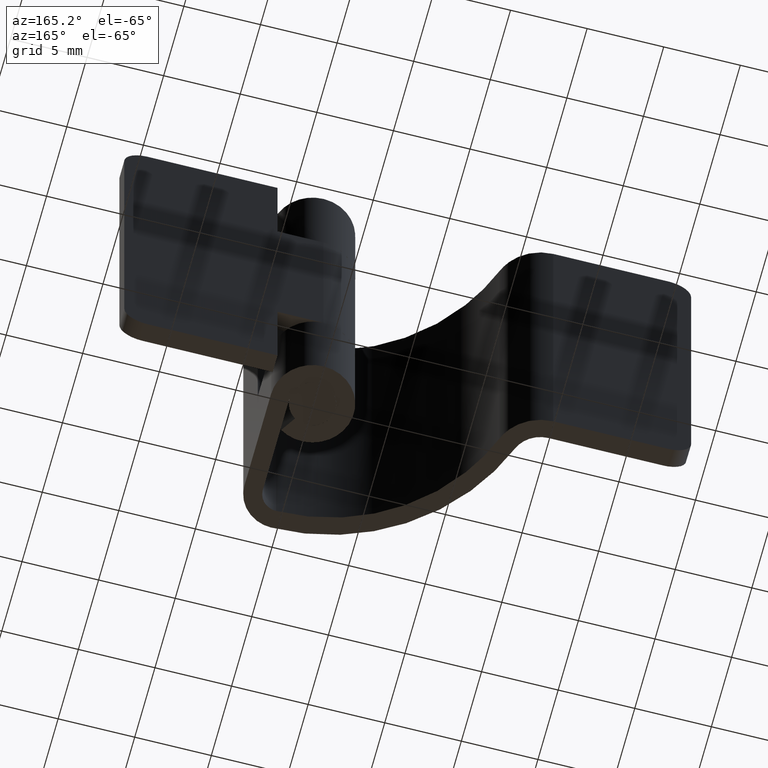
[diagram: clean part render]
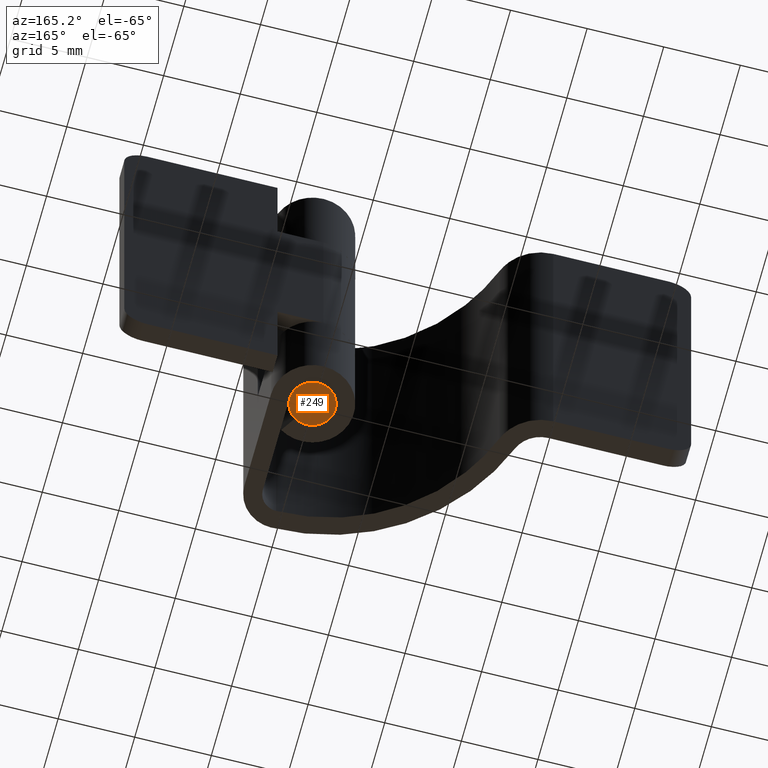
[diagram: same view with one face highlighted and labeled with its STEP entity id]
A machine part, auxiliary view. The second image highlights one B-rep face of the part: STEP entity #249.
In plain terms, the highlighted face is a freeform B-spline surface patch.
Its self-contained STEP definition (entity closure, byte-faithful):
#79=CARTESIAN_POINT('',(0.117688643674272,-1.495376000593198,-8.881784E-016));
#80=VERTEX_POINT('',#79);
#86=CARTESIAN_POINT('',(1.500000000000000,0.0,0.0));
#87=VERTEX_POINT('',#86);
#88=CARTESIAN_POINT('',(1.500000000000000,0.0,0.0));
#89=CARTESIAN_POINT('',(1.500000000000000,-1.386585737333832,0.0));
#90=CARTESIAN_POINT('',(0.117688643674272,-1.495376000593198,-8.881784E-016));
#98=(BOUNDED_CURVE()B_SPLINE_CURVE(2,(#88,#89,#90),.UNSPECIFIED.,.F.,.U.)B_SPLINE_CURVE_WITH_KNOTS((3,3),(0.0,0.236331300613851),.UNSPECIFIED.)CURVE()GEOMETRIC_REPRESENTATION_ITEM()RATIONAL_B_SPLINE_CURVE((1.0,0.723120658627358,0.969723356132339))REPRESENTATION_ITEM(''));
#99=EDGE_CURVE('',#87,#80,#98,.T.);
#101=CARTESIAN_POINT('',(-0.117688643674273,1.495376000593198,-8.881784E-016));
#102=VERTEX_POINT('',#101);
#103=CARTESIAN_POINT('',(-0.117688643674273,1.495376000593198,-8.881784E-016));
#104=CARTESIAN_POINT('',(-0.058935160594392,1.500000000000000,0.0));
#105=CARTESIAN_POINT('',(0.0,1.500000000000000,0.0));
#106=CARTESIAN_POINT('',(1.500000000000000,1.500000000000000,0.0));
#107=CARTESIAN_POINT('',(1.500000000000000,0.0,0.0));
#115=(BOUNDED_CURVE()B_SPLINE_CURVE(2,(#103,#104,#105,#106,#107),.UNSPECIFIED.,.F.,.U.)B_SPLINE_CURVE_WITH_KNOTS((3,2,3),(0.736331300613851,0.750000000000000,1.0),.UNSPECIFIED.)CURVE()GEOMETRIC_REPRESENTATION_ITEM()RATIONAL_B_SPLINE_CURVE((0.969723356132339,0.983986122559189,1.0,0.707106781186548,1.0))REPRESENTATION_ITEM(''));
#116=EDGE_CURVE('',#102,#87,#115,.T.);
#192=CARTESIAN_POINT('',(-1.500000000000000,0.0,0.0));
#193=VERTEX_POINT('',#192);
#194=CARTESIAN_POINT('',(-1.500000000000000,0.0,0.0));
#195=CARTESIAN_POINT('',(-1.500000000000000,1.386585737333828,0.0));
#196=CARTESIAN_POINT('',(-0.117688643674273,1.495376000593199,-8.881784E-016));
#204=(BOUNDED_CURVE()B_SPLINE_CURVE(2,(#194,#195,#196),.UNSPECIFIED.,.F.,.U.)B_SPLINE_CURVE_WITH_KNOTS((3,3),(0.500000000000000,0.736331300613850),.UNSPECIFIED.)CURVE()GEOMETRIC_REPRESENTATION_ITEM()RATIONAL_B_SPLINE_CURVE((1.0,0.723120658627359,0.969723356132338))REPRESENTATION_ITEM(''));
#205=EDGE_CURVE('',#193,#102,#204,.T.);
#207=CARTESIAN_POINT('',(0.117688643674272,-1.495376000593198,-8.881784E-016));
#208=CARTESIAN_POINT('',(0.058935160594392,-1.500000000000000,0.0));
#209=CARTESIAN_POINT('',(0.0,-1.500000000000000,0.0));
#210=CARTESIAN_POINT('',(-1.500000000000000,-1.500000000000000,0.0));
#211=CARTESIAN_POINT('',(-1.500000000000000,0.0,0.0));
#219=(BOUNDED_CURVE()B_SPLINE_CURVE(2,(#207,#208,#209,#210,#211),.UNSPECIFIED.,.F.,.U.)B_SPLINE_CURVE_WITH_KNOTS((3,2,3),(0.236331300613851,0.250000000000000,0.500000000000000),.UNSPECIFIED.)CURVE()GEOMETRIC_REPRESENTATION_ITEM()RATIONAL_B_SPLINE_CURVE((0.969723356132339,0.983986122559189,1.0,0.707106781186548,1.0))REPRESENTATION_ITEM(''));
#220=EDGE_CURVE('',#80,#193,#219,.T.);
#238=CARTESIAN_POINT('',(-1.649849994185418,-1.649392129090171,0.0));
#239=CARTESIAN_POINT('',(1.649850074651688,-1.649392129090171,0.0));
#240=CARTESIAN_POINT('',(-1.649849994185418,1.649392209556442,0.0));
#241=CARTESIAN_POINT('',(1.649850074651688,1.649392209556442,0.0));
#242=B_SPLINE_SURFACE_WITH_KNOTS('',1,1,((#238,#240),(#239,#241)),.UNSPECIFIED.,.F.,.F.,.U.,(2,2),(2,2),(0.0,3.299700068837106),(0.0,3.298784338646613),.UNSPECIFIED.);
#243=ORIENTED_EDGE('',*,*,#99,.T.);
#244=ORIENTED_EDGE('',*,*,#220,.T.);
#245=ORIENTED_EDGE('',*,*,#205,.T.);
#246=ORIENTED_EDGE('',*,*,#116,.T.);
#247=EDGE_LOOP('',(#243,#244,#245,#246));
#248=FACE_OUTER_BOUND('',#247,.T.);
#249=ADVANCED_FACE('',(#248),#242,.F.);